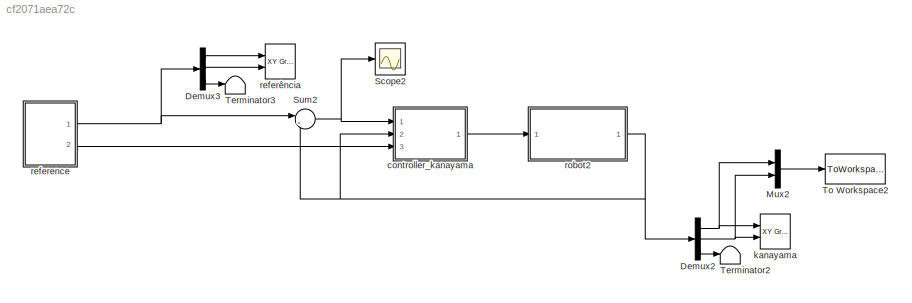
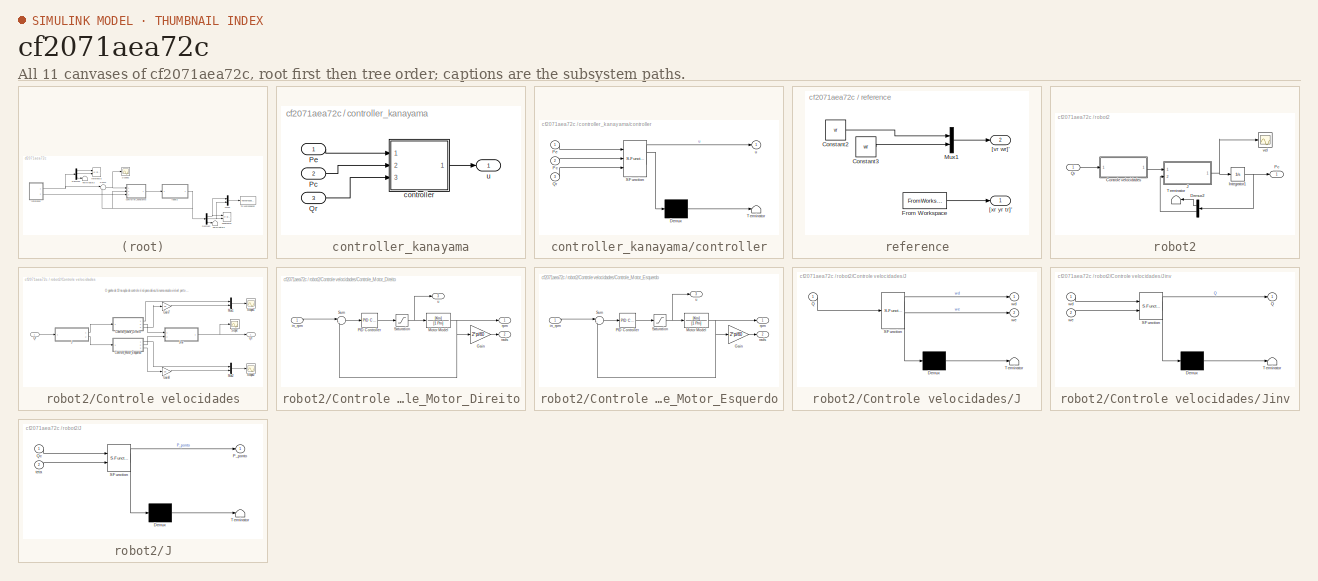
[diagram: thumbnail index - all 11 canvases of the model, root first then tree order]
MODEL slx_cf2071aea72c
KIND model
CONFIG AbsTol = auto
CONFIG EnableMultiTasking = off
CONFIG FixedStep = auto
CONFIG MaxStep = auto
CONFIG MinStep = auto
CONFIG RelTol = 1e-3
CONFIG SampleTimeConstraint = Unconstrained
CONFIG Solver = VariableStepAuto
CONFIG SolverName = VariableStepAuto
CONFIG StartTime = 0.0
CONFIG StopTime = 6
BLOCK [Demux] Demux2
  DisplayOption = bar
  Outputs = 3
  Ports = [1, 3]
BLOCK [Demux] Demux3
  DisplayOption = bar
  Outputs = 3
  Ports = [1, 3]
BLOCK [Mux] Mux2
  DisplayOption = bar
  Inputs = 2
  Ports = [2, 1]
BLOCK [Scope] Scope2
  Floating = off
  NumInputPorts = 1
  Ports = [1]
  ScopeSpecificationString = Simulink.scopes.TimeScopeBlockCfg('CurrentConfiguration', extmgr.ConfigurationSet(extmgr.Configuration('Core','General UI',true),extmgr.Configuration('Core','Source UI',true),extmgr.Configuration('Sources','WiredSimulink',true,'DataLoggingVariableName','ScopeData3'),extmgr.Configuration('Visuals','Time Domain',true,'SerializedDisplays',{struct('MinYLimReal','-3.96031','MaxYLimReal','33.4395','YLab...<+1456ch>
BLOCK [Sum] Sum2
  AccumDataTypeStr = double
  IconShape = round
  InputSameDT = off
  Inputs = |+-
  OutDataTypeStr = Inherit: Inherit via internal rule
  Ports = [2, 1]
  SaturateOnIntegerOverflow = off
BLOCK [Terminator] Terminator2
BLOCK [Terminator] Terminator3
BLOCK [ToWorkspace] To Workspace2
  FixptAsFi = on
  MaxDataPoints = inf
  Ports = [1]
  SampleTime = -1
  Save2DSignal = 3-D array (concatenate along third dimension)
  VariableName = kanayama
BLOCK [SubSystem] controller_kanayama
  Ports = [3, 1]
  RequestExecContextInheritance = off
BLOCK [Inport] controller_kanayama/Pc
  IconDisplay = Port number
  Port = 2
BLOCK [Inport] controller_kanayama/Pe
  IconDisplay = Port number
BLOCK [Inport] controller_kanayama/Qr
  IconDisplay = Port number
  Port = 3
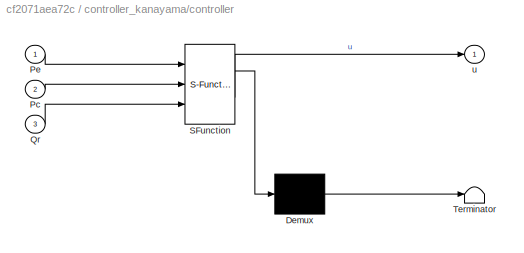
BLOCK [SubSystem] controller_kanayama/controller
  ErrorFcn = Stateflow.Translate.translate
  PermitHierarchicalResolution = ExplicitOnly
  Ports = [3, 1]
  RequestExecContextInheritance = off
  SFBlockType = MATLAB Function
  TreatAsAtomicUnit = on
BLOCK [Demux] controller_kanayama/controller/ Demux 
  Outputs = 1
  Ports = [1, 1]
BLOCK [S-Function] controller_kanayama/controller/ SFunction 
  EnableBusSupport = on
  FunctionName = sf_sfun
  Parameters = kt,kx,ky
  PortCounts = [3 2]
  Ports = [3, 2]
  SFcnIsStateOwnerBlock = off
  SFunctionDeploymentMode = off
  Tag = Stateflow S-Function Kanayama_seguidor_mapa 6
BLOCK [Terminator] controller_kanayama/controller/ Terminator 
BLOCK [Inport] controller_kanayama/controller/Pc
  IconDisplay = Port number
  Port = 2
BLOCK [Inport] controller_kanayama/controller/Pe
  IconDisplay = Port number
BLOCK [Inport] controller_kanayama/controller/Qr
  IconDisplay = Port number
  Port = 3
BLOCK [Outport] controller_kanayama/controller/u
  IconDisplay = Port number
BLOCK [Outport] controller_kanayama/u
  IconDisplay = Port number
BLOCK [Reference] kanayama  REF=simulink/Sinks/XY Graph
  Ports = [2]
  SourceBlock = simulink/Sinks/XY Graph
  SourceProductBaseCode = SL
  SourceProductName = Simulink
  SourceType = XY scope.
BLOCK [SubSystem] reference
  Ports = [0, 2]
  RequestExecContextInheritance = off
BLOCK [Constant] reference/Constant2
  Value = vr
  VectorParams1D = off
BLOCK [Constant] reference/Constant3
  Value = wr
  VectorParams1D = off
BLOCK [FromWorkspace] reference/From Workspace
  SampleTime = Ts
  VariableName = mapa_pista
  ZeroCross = on
BLOCK [Mux] reference/Mux1
  DisplayOption = bar
  Inputs = 2
  Ports = [2, 1]
BLOCK [Outport] reference/[vr wr]'
  IconDisplay = Port number
  Port = 2
BLOCK [Outport] reference/[xr yr tr]' 
  IconDisplay = Port number
BLOCK [Reference] referência  REF=simulink/Sinks/XY Graph
  Ports = [2]
  SourceBlock = simulink/Sinks/XY Graph
  SourceProductBaseCode = SL
  SourceProductName = Simulink
  SourceType = XY scope.
BLOCK [SubSystem] robot2
  Ports = [1, 1]
  RequestExecContextInheritance = off
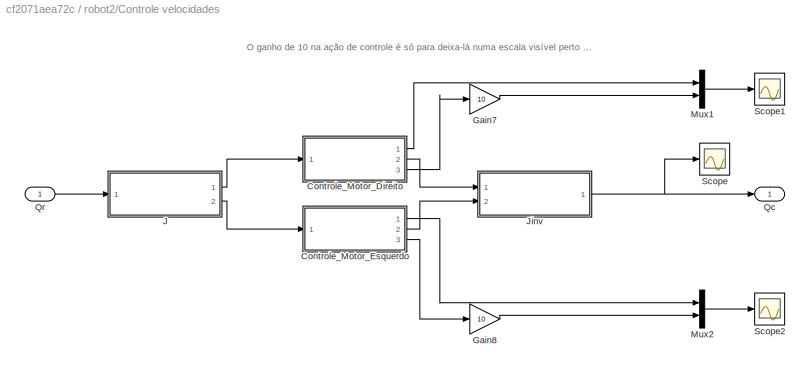
BLOCK [SubSystem] robot2/Controle velocidades
  Ports = [1, 1]
  RequestExecContextInheritance = off
BLOCK [SubSystem] robot2/Controle velocidades/Controle_Motor_Direito
  Ports = [1, 3]
  RequestExecContextInheritance = off
BLOCK [Gain] robot2/Controle velocidades/Controle_Motor_Direito/Gain
  Gain = 2*pi/60
  OutDataTypeStr = Inherit: Inherit via internal rule
  ParamDataTypeStr = Inherit: Inherit via internal rule
  SaturateOnIntegerOverflow = off
BLOCK [TransferFcn] robot2/Controle velocidades/Controle_Motor_Direito/Motor Model
  Denominator = [1 Pm]
  Numerator = [Km]
BLOCK [Reference] robot2/Controle velocidades/Controle_Motor_Direito/PID Controller  REF=simulink/Continuous/PID Controller
  Ports = [1, 1]
  SourceBlock = simulink/Continuous/PID Controller
  SourceProductBaseCode = SL
  SourceProductName = Simulink
  SourceType = PID 1dof
BLOCK [Saturate] robot2/Controle velocidades/Controle_Motor_Direito/Saturation
  InputPortMap = u0
  LowerLimit = -100
  Ports = [1, 1]
  UpperLimit = 100
BLOCK [Sum] robot2/Controle velocidades/Controle_Motor_Direito/Sum
  IconShape = round
  InputSameDT = off
  Inputs = |+-
  OutDataTypeStr = Inherit: Inherit via internal rule
  Ports = [2, 1]
  SaturateOnIntegerOverflow = off
BLOCK [Inport] robot2/Controle velocidades/Controle_Motor_Direito/in_rpm
  IconDisplay = Port number
BLOCK [Outport] robot2/Controle velocidades/Controle_Motor_Direito/rads
  IconDisplay = Port number
  Port = 2
BLOCK [Outport] robot2/Controle velocidades/Controle_Motor_Direito/rpm
  IconDisplay = Port number
BLOCK [Outport] robot2/Controle velocidades/Controle_Motor_Direito/u
  IconDisplay = Port number
  Port = 3
BLOCK [SubSystem] robot2/Controle velocidades/Controle_Motor_Esquerdo
  Ports = [1, 3]
  RequestExecContextInheritance = off
BLOCK [Gain] robot2/Controle velocidades/Controle_Motor_Esquerdo/Gain
  Gain = 2*pi/60
  OutDataTypeStr = Inherit: Inherit via internal rule
  ParamDataTypeStr = Inherit: Inherit via internal rule
  SaturateOnIntegerOverflow = off
BLOCK [TransferFcn] robot2/Controle velocidades/Controle_Motor_Esquerdo/Motor Model
  Denominator = [1 Pm]
  Numerator = [Km]
BLOCK [Reference] robot2/Controle velocidades/Controle_Motor_Esquerdo/PID Controller  REF=simulink/Continuous/PID Controller
  Ports = [1, 1]
  SourceBlock = simulink/Continuous/PID Controller
  SourceProductBaseCode = SL
  SourceProductName = Simulink
  SourceType = PID 1dof
BLOCK [Saturate] robot2/Controle velocidades/Controle_Motor_Esquerdo/Saturation
  InputPortMap = u0
  LowerLimit = -100
  Ports = [1, 1]
  UpperLimit = 100
BLOCK [Sum] robot2/Controle velocidades/Controle_Motor_Esquerdo/Sum
  IconShape = round
  InputSameDT = off
  Inputs = |+-
  OutDataTypeStr = Inherit: Inherit via internal rule
  Ports = [2, 1]
  SaturateOnIntegerOverflow = off
BLOCK [Inport] robot2/Controle velocidades/Controle_Motor_Esquerdo/in_rpm
  IconDisplay = Port number
BLOCK [Outport] robot2/Controle velocidades/Controle_Motor_Esquerdo/rads
  IconDisplay = Port number
  Port = 2
BLOCK [Outport] robot2/Controle velocidades/Controle_Motor_Esquerdo/rpm
  IconDisplay = Port number
BLOCK [Outport] robot2/Controle velocidades/Controle_Motor_Esquerdo/u
  IconDisplay = Port number
  Port = 3
BLOCK [Gain] robot2/Controle velocidades/Gain7
  Gain = 10
  OutDataTypeStr = Inherit: Inherit via internal rule
  ParamDataTypeStr = Inherit: Inherit via internal rule
  SaturateOnIntegerOverflow = off
BLOCK [Gain] robot2/Controle velocidades/Gain8
  Gain = 10
  OutDataTypeStr = Inherit: Inherit via internal rule
  ParamDataTypeStr = Inherit: Inherit via internal rule
  SaturateOnIntegerOverflow = off
BLOCK [SubSystem] robot2/Controle velocidades/J
  ErrorFcn = Stateflow.Translate.translate
  PermitHierarchicalResolution = ExplicitOnly
  Ports = [1, 2]
  RequestExecContextInheritance = off
  SFBlockType = MATLAB Function
  TreatAsAtomicUnit = on
BLOCK [Demux] robot2/Controle velocidades/J/ Demux 
  Outputs = 1
  Ports = [1, 1]
BLOCK [S-Function] robot2/Controle velocidades/J/ SFunction 
  EnableBusSupport = on
  FunctionName = sf_sfun
  PortCounts = [1 3]
  Ports = [1, 3]
  SFcnIsStateOwnerBlock = off
  SFunctionDeploymentMode = off
  Tag = Stateflow S-Function Kanayama_seguidor_mapa 14
BLOCK [Terminator] robot2/Controle velocidades/J/ Terminator 
BLOCK [Inport] robot2/Controle velocidades/J/Q
  IconDisplay = Port number
BLOCK [Outport] robot2/Controle velocidades/J/wd
  IconDisplay = Port number
BLOCK [Outport] robot2/Controle velocidades/J/we
  IconDisplay = Port number
  Port = 2
BLOCK [SubSystem] robot2/Controle velocidades/Jinv
  ErrorFcn = Stateflow.Translate.translate
  PermitHierarchicalResolution = ExplicitOnly
  Ports = [2, 1]
  RequestExecContextInheritance = off
  SFBlockType = MATLAB Function
  TreatAsAtomicUnit = on
BLOCK [Demux] robot2/Controle velocidades/Jinv/ Demux 
  Outputs = 1
  Ports = [1, 1]
BLOCK [S-Function] robot2/Controle velocidades/Jinv/ SFunction 
  EnableBusSupport = on
  FunctionName = sf_sfun
  PortCounts = [2 2]
  Ports = [2, 2]
  SFcnIsStateOwnerBlock = off
  SFunctionDeploymentMode = off
  Tag = Stateflow S-Function Kanayama_seguidor_mapa 15
BLOCK [Terminator] robot2/Controle velocidades/Jinv/ Terminator 
BLOCK [Outport] robot2/Controle velocidades/Jinv/Q
  IconDisplay = Port number
BLOCK [Inport] robot2/Controle velocidades/Jinv/wd
  IconDisplay = Port number
BLOCK [Inport] robot2/Controle velocidades/Jinv/we
  IconDisplay = Port number
  Port = 2
BLOCK [Mux] robot2/Controle velocidades/Mux1
  DisplayOption = bar
  Inputs = 2
  Ports = [2, 1]
BLOCK [Mux] robot2/Controle velocidades/Mux2
  DisplayOption = bar
  Inputs = 2
  Ports = [2, 1]
BLOCK [Outport] robot2/Controle velocidades/Qc
  IconDisplay = Port number
BLOCK [Inport] robot2/Controle velocidades/Qr
  IconDisplay = Port number
BLOCK [Scope] robot2/Controle velocidades/Scope
  Floating = off
  NumInputPorts = 1
  Ports = [1]
  ScopeSpecificationString = Simulink.scopes.TimeScopeBlockCfg('CurrentConfiguration', extmgr.ConfigurationSet(extmgr.Configuration('Core','General UI',true),extmgr.Configuration('Core','Source UI',true),extmgr.Configuration('Sources','WiredSimulink',true,'DataLoggingVariableName','ScopeData1'),extmgr.Configuration('Visuals','Time Domain',true,'SerializedDisplays',{struct('MinYLimReal','-16.54418','MaxYLimReal','14.01148','YL...<+1474ch>
BLOCK [Scope] robot2/Controle velocidades/Scope1
  Floating = off
  NumInputPorts = 1
  Ports = [1]
  ScopeSpecificationString = Simulink.scopes.TimeScopeBlockCfg('CurrentConfiguration', extmgr.ConfigurationSet(extmgr.Configuration('Core','General UI',true),extmgr.Configuration('Core','Source UI',true),extmgr.Configuration('Sources','WiredSimulink',true,'DataLoggingVariableName','ScopeData4'),extmgr.Configuration('Visuals','Time Domain',true,'SerializedDisplays',{struct('MinYLimReal','-1088.05337','MaxYLimReal','1232.00593'...<+1550ch>
BLOCK [Scope] robot2/Controle velocidades/Scope2
  Floating = off
  NumInputPorts = 1
  Ports = [1]
  ScopeSpecificationString = Simulink.scopes.TimeScopeBlockCfg('CurrentConfiguration', extmgr.ConfigurationSet(extmgr.Configuration('Core','General UI',true),extmgr.Configuration('Core','Source UI',true),extmgr.Configuration('Sources','WiredSimulink',true,'DataLoggingVariableName','ScopeData5'),extmgr.Configuration('Visuals','Time Domain',true,'SerializedDisplays',{struct('MinYLimReal','-450.62755','MaxYLimReal','1161.18084',...<+1549ch>
BLOCK [Demux] robot2/Demux2
  DisplayOption = bar
  Outputs = [2 1]
  Ports = [1, 2]
BLOCK [Integrator] robot2/Integrator1
  InitialCondition = ini
  Ports = [1, 1]
BLOCK [SubSystem] robot2/J
  ErrorFcn = Stateflow.Translate.translate
  PermitHierarchicalResolution = ExplicitOnly
  Ports = [2, 1]
  RequestExecContextInheritance = off
  SFBlockType = MATLAB Function
  TreatAsAtomicUnit = on
BLOCK [Demux] robot2/J/ Demux 
  Outputs = 1
  Ports = [1, 1]
BLOCK [S-Function] robot2/J/ SFunction 
  EnableBusSupport = on
  FunctionName = sf_sfun
  PortCounts = [2 2]
  Ports = [2, 2]
  SFcnIsStateOwnerBlock = off
  SFunctionDeploymentMode = off
  Tag = Stateflow S-Function Kanayama_seguidor_mapa 16
BLOCK [Terminator] robot2/J/ Terminator 
BLOCK [Outport] robot2/J/P_ponto
  IconDisplay = Port number
BLOCK [Inport] robot2/J/Qc
  IconDisplay = Port number
BLOCK [Inport] robot2/J/teta
  IconDisplay = Port number
  Port = 2
BLOCK [Outport] robot2/Pc
  IconDisplay = Port number
BLOCK [Inport] robot2/Qr
  IconDisplay = Port number
BLOCK [Terminator] robot2/Terminator
BLOCK [Scope] robot2/vel
  Floating = off
  NumInputPorts = 1
  Ports = [1]
  ScopeSpecificationString = Simulink.scopes.TimeScopeBlockCfg('CurrentConfiguration', extmgr.ConfigurationSet(extmgr.Configuration('Core','General UI',true),extmgr.Configuration('Core','Source UI',true),extmgr.Configuration('Sources','WiredSimulink',true,'DataLogging',true,'DataLoggingVariableName','ctrl1','DataLoggingSaveFormat','StructureWithTime','DataLoggingDecimation','1','DataLoggingDecimateData',true),extmgr.Configura...<+1796ch>
ANNOTATION robot2/Controle velocidades: O ganho de 10 na ação de controle é só para deixa-lá numa escala visível perto da velocidade
NET Demux2:1 -> Mux2:1, kanayama:1
NET Demux2:2 -> Mux2:2, kanayama:2
LINE Demux2:3 -> Terminator2:1
LINE Demux3:1 -> referência:1
LINE Demux3:2 -> referência:2
LINE Demux3:3 -> Terminator3:1
LINE Mux2:1 -> To Workspace2:1
NET Sum2:1 -> Scope2:1, controller_kanayama:1
LINE controller_kanayama/Pc:1 -> controller_kanayama/controller:2
LINE controller_kanayama/Pe:1 -> controller_kanayama/controller:1
LINE controller_kanayama/Qr:1 -> controller_kanayama/controller:3
LINE controller_kanayama/controller:1 -> controller_kanayama/u:1
LINE controller_kanayama:1 -> robot2:1
LINE reference/Constant2:1 -> reference/Mux1:1
LINE reference/Constant3:1 -> reference/Mux1:2
LINE reference/From Workspace:1 -> reference/[xr yr tr]' :1
LINE reference/Mux1:1 -> reference/[vr wr]':1
NET reference:1 -> Demux3:1, Sum2:1
LINE reference:2 -> controller_kanayama:3
LINE robot2/Controle velocidades/Controle_Motor_Direito/Gain:1 -> robot2/Controle velocidades/Controle_Motor_Direito/rads:1
NET robot2/Controle velocidades/Controle_Motor_Direito/Motor Model:1 -> robot2/Controle velocidades/Controle_Motor_Direito/Gain:1, robot2/Controle velocidades/Controle_Motor_Direito/Sum:2, robot2/Controle velocidades/Controle_Motor_Direito/rpm:1
LINE robot2/Controle velocidades/Controle_Motor_Direito/PID Controller:1 -> robot2/Controle velocidades/Controle_Motor_Direito/Saturation:1
NET robot2/Controle velocidades/Controle_Motor_Direito/Saturation:1 -> robot2/Controle velocidades/Controle_Motor_Direito/Motor Model:1, robot2/Controle velocidades/Controle_Motor_Direito/u:1
LINE robot2/Controle velocidades/Controle_Motor_Direito/Sum:1 -> robot2/Controle velocidades/Controle_Motor_Direito/PID Controller:1
LINE robot2/Controle velocidades/Controle_Motor_Direito/in_rpm:1 -> robot2/Controle velocidades/Controle_Motor_Direito/Sum:1
LINE robot2/Controle velocidades/Controle_Motor_Direito:1 -> robot2/Controle velocidades/Mux1:1
LINE robot2/Controle velocidades/Controle_Motor_Direito:2 -> robot2/Controle velocidades/Jinv:1
LINE robot2/Controle velocidades/Controle_Motor_Direito:3 -> robot2/Controle velocidades/Gain7:1
LINE robot2/Controle velocidades/Controle_Motor_Esquerdo/Gain:1 -> robot2/Controle velocidades/Controle_Motor_Esquerdo/rads:1
NET robot2/Controle velocidades/Controle_Motor_Esquerdo/Motor Model:1 -> robot2/Controle velocidades/Controle_Motor_Esquerdo/Gain:1, robot2/Controle velocidades/Controle_Motor_Esquerdo/Sum:2, robot2/Controle velocidades/Controle_Motor_Esquerdo/rpm:1
LINE robot2/Controle velocidades/Controle_Motor_Esquerdo/PID Controller:1 -> robot2/Controle velocidades/Controle_Motor_Esquerdo/Saturation:1
NET robot2/Controle velocidades/Controle_Motor_Esquerdo/Saturation:1 -> robot2/Controle velocidades/Controle_Motor_Esquerdo/Motor Model:1, robot2/Controle velocidades/Controle_Motor_Esquerdo/u:1
LINE robot2/Controle velocidades/Controle_Motor_Esquerdo/Sum:1 -> robot2/Controle velocidades/Controle_Motor_Esquerdo/PID Controller:1
LINE robot2/Controle velocidades/Controle_Motor_Esquerdo/in_rpm:1 -> robot2/Controle velocidades/Controle_Motor_Esquerdo/Sum:1
LINE robot2/Controle velocidades/Controle_Motor_Esquerdo:1 -> robot2/Controle velocidades/Mux2:1
LINE robot2/Controle velocidades/Controle_Motor_Esquerdo:2 -> robot2/Controle velocidades/Jinv:2
LINE robot2/Controle velocidades/Controle_Motor_Esquerdo:3 -> robot2/Controle velocidades/Gain8:1
LINE robot2/Controle velocidades/Gain7:1 -> robot2/Controle velocidades/Mux1:2
LINE robot2/Controle velocidades/Gain8:1 -> robot2/Controle velocidades/Mux2:2
LINE robot2/Controle velocidades/J:1 -> robot2/Controle velocidades/Controle_Motor_Direito:1
LINE robot2/Controle velocidades/J:2 -> robot2/Controle velocidades/Controle_Motor_Esquerdo:1
NET robot2/Controle velocidades/Jinv:1 -> robot2/Controle velocidades/Qc:1, robot2/Controle velocidades/Scope:1
LINE robot2/Controle velocidades/Mux1:1 -> robot2/Controle velocidades/Scope1:1
LINE robot2/Controle velocidades/Mux2:1 -> robot2/Controle velocidades/Scope2:1
LINE robot2/Controle velocidades/Qr:1 -> robot2/Controle velocidades/J:1
LINE robot2/Controle velocidades:1 -> robot2/J:1
LINE robot2/Demux2:1 -> robot2/Terminator:1
LINE robot2/Demux2:2 -> robot2/J:2
NET robot2/Integrator1:1 -> robot2/Demux2:1, robot2/Pc:1
NET robot2/J:1 -> robot2/Integrator1:1, robot2/vel:1
LINE robot2/Qr:1 -> robot2/Controle velocidades:1
NET robot2:1 -> Demux2:1, Sum2:2, controller_kanayama:2
note: NET lines group one-source signal fan-out (src -> all destinations, sorted); 1:1 wires keep LINE
CHART controller_kanayama/controller states=1 transitions=1
  STATE_LABEL 'eML_blk_kernel()'
  STATE_LABEL "SCRIPT:\nfunction u = fcn(Pe,Pc,Qr,kx,ky,kt)\n\n Pe = [cos(Pc(3)) sin(Pc(3)) 0; -sin(Pc(3)) cos(Pc(3)) 0; 0 0 1]*Pe;\n%  Pe(1) = 0;  %essa linha é um caso a parte (para o seguidor de linha)\n u = [Qr(1)*cos(Pe(3))+kx*Pe(1) Qr(2)+Qr(1)*(ky*Pe(2)+kt*sin(Pe(3)))]';\n \nend"
CHART robot2/Controle velocidades/J states=1 transitions=1
  STATE_LABEL 'eML_blk_kernel()'
  STATE_LABEL 'SCRIPT:\nfunction [wd, we] = fcn(Q)\n% Dados do robô\nr = 16e-3;      % Raio da roda\na = 69e-3;      % Distância do centro do robô até o centro das rodas\n\nw_mot_rpm = (60/(2*pi))*[1/r a/r; 1/r -a/r]*Q;   % o 60/(2pi) é pra converter p/ rpm\nwd = w_mot_rpm(1);\nwe = w_mot_rpm(2);'
CHART robot2/Controle velocidades/Jinv states=1 transitions=1
  STATE_LABEL 'eML_blk_kernel()'
  STATE_LABEL 'SCRIPT:\nfunction Q = fcn(wd, we)\n% Dados do robô\nr = 16e-3;      % Raio da roda\na = 69e-3;      % Distância do centro do robô até o centro das rodas\n\nQ = (r/2)*[1 1; 1/a -1/a]*[wd; we];\n\n'
CHART robot2/J states=1 transitions=1
  STATE_LABEL 'eML_blk_kernel()'
  STATE_LABEL 'SCRIPT:\nfunction P_ponto = fcn(Qc, teta)\n\nP_ponto = [Qc(1)*cos(teta); Qc(1)*sin(teta); Qc(2)]; %[Vx, Vy, Vteta];\n'
